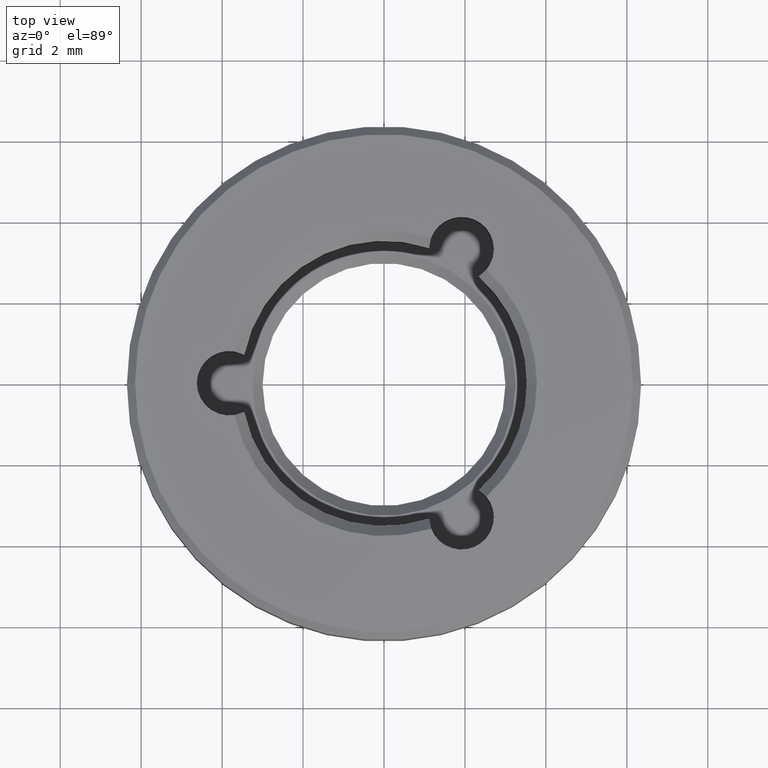
[diagram: clean part render]
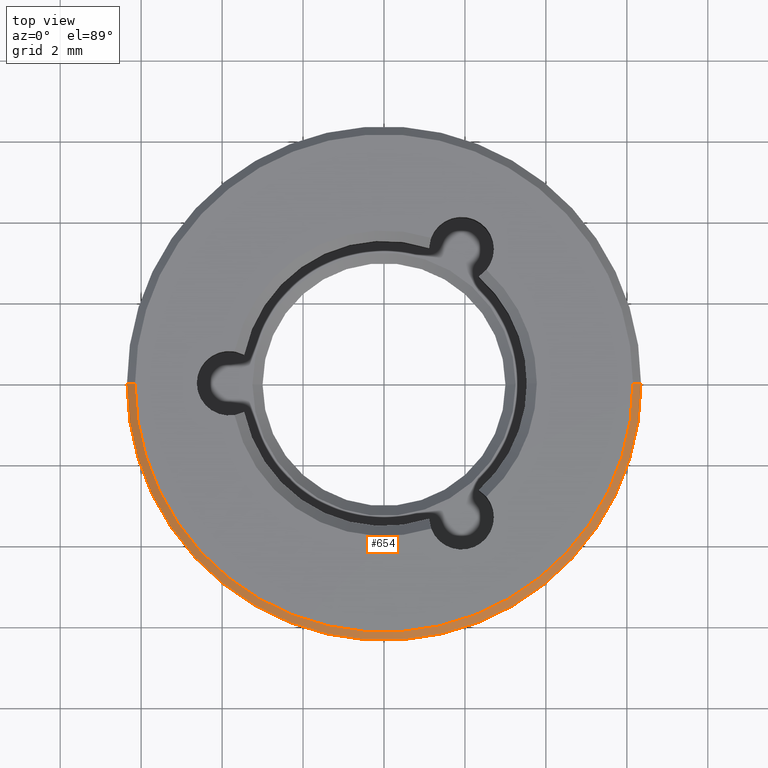
[diagram: same view with one face highlighted and labeled with its STEP entity id]
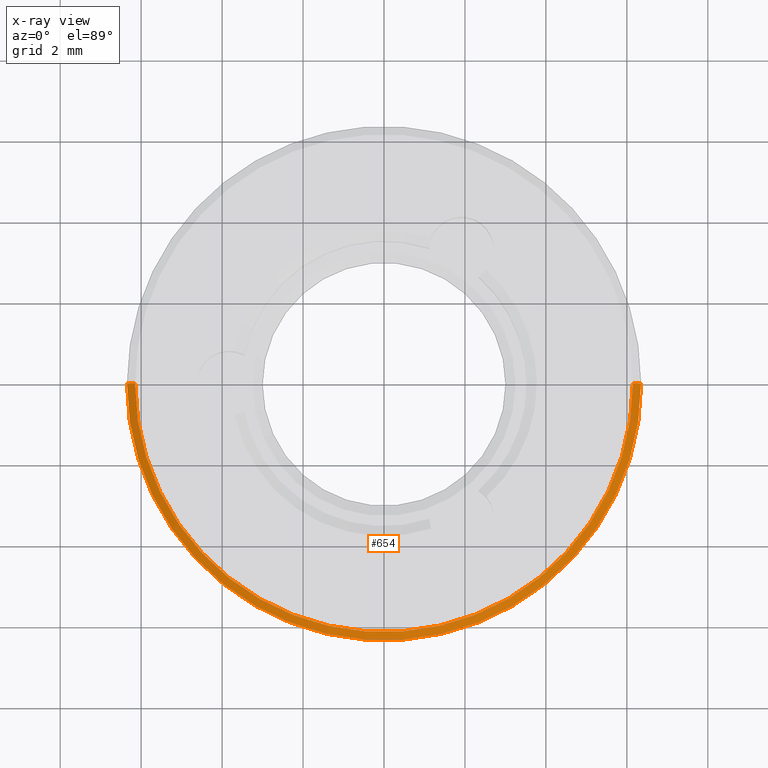
[diagram: x-ray of the same camera — body ghosted, the highlighted face saturated]
A machine part, top view. The second image highlights one B-rep face of the part: STEP entity #654.
The next image is the same camera in x-ray: the body ghosted, the highlighted face saturated — about 0% of this face is hidden behind the body in this view.
In plain terms, the highlighted conical surface has half-angle 45 deg.
Its self-contained STEP definition (entity closure, byte-faithful):
#42 = EDGE_LOOP ( 'NONE', ( #680, #871, #483, #331 ) ) ;
#55 = DIRECTION ( 'NONE',  ( 0.000000000000000000, 0.000000000000000000, -1.000000000000000000 ) ) ;
#59 = VERTEX_POINT ( 'NONE', #213 ) ;
#135 = CIRCLE ( 'NONE', #803, 6.349999999999999645 ) ;
#167 = DIRECTION ( 'NONE',  ( 0.000000000000000000, 0.000000000000000000, -1.000000000000000000 ) ) ;
#213 = CARTESIAN_POINT ( 'NONE',  ( 6.149999999999999467, 7.654042494670954648E-16, 2.200000000000000178 ) ) ;
#295 = EDGE_CURVE ( 'NONE', #751, #886, #135, .T. ) ;
#308 = VERTEX_POINT ( 'NONE', #889 ) ;
#325 = LINE ( 'NONE', #609, #793 ) ;
#328 = DIRECTION ( 'NONE',  ( -0.7071067811865490160, 0.000000000000000000, -0.7071067811865459074 ) ) ;
#331 = ORIENTED_EDGE ( 'NONE', *, *, #295, .F. ) ;
#336 = CIRCLE ( 'NONE', #572, 6.149999999999999467 ) ;
#352 = CARTESIAN_POINT ( 'NONE',  ( 6.149999999999999467, 7.531577814756219106E-16, 2.200000000000000178 ) ) ;
#367 = CARTESIAN_POINT ( 'NONE',  ( 0.000000000000000000, 0.000000000000000000, 2.200000000000000178 ) ) ;
#377 = DIRECTION ( 'NONE',  ( 1.000000000000000000, 0.000000000000000000, 0.000000000000000000 ) ) ;
#421 = LINE ( 'NONE', #352, #618 ) ;
#426 = EDGE_CURVE ( 'NONE', #308, #886, #325, .T. ) ;
#483 = ORIENTED_EDGE ( 'NONE', *, *, #426, .T. ) ;
#487 = EDGE_CURVE ( 'NONE', #308, #59, #336, .T. ) ;
#493 = CARTESIAN_POINT ( 'NONE',  ( 0.000000000000000000, 0.000000000000000000, 2.200000000000000178 ) ) ;
#524 = CARTESIAN_POINT ( 'NONE',  ( 6.349999999999999645, 7.776507174585692163E-16, 2.000000000000000444 ) ) ;
#557 = CONICAL_SURFACE ( 'NONE', #649, 6.149999999999999467, 0.7853981633974503884 ) ;
#572 = AXIS2_PLACEMENT_3D ( 'NONE', #493, #855, #574 ) ;
#574 = DIRECTION ( 'NONE',  ( 1.000000000000000000, 0.000000000000000000, 0.000000000000000000 ) ) ;
#577 = FACE_OUTER_BOUND ( 'NONE', #42, .T. ) ;
#592 = CARTESIAN_POINT ( 'NONE',  ( -6.349999999999999645, 0.000000000000000000, 2.000000000000000444 ) ) ;
#609 = CARTESIAN_POINT ( 'NONE',  ( -6.149999999999999467, 0.000000000000000000, 2.200000000000000178 ) ) ;
#618 = VECTOR ( 'NONE', #715, 1000.000000000000000 ) ;
#628 = EDGE_CURVE ( 'NONE', #59, #751, #421, .T. ) ;
#649 = AXIS2_PLACEMENT_3D ( 'NONE', #367, #55, #830 ) ;
#654 = ADVANCED_FACE ( 'NONE', ( #577 ), #557, .T. ) ;
#680 = ORIENTED_EDGE ( 'NONE', *, *, #628, .F. ) ;
#715 = DIRECTION ( 'NONE',  ( 0.7071067811865490160, 8.659560562354950115E-17, -0.7071067811865459074 ) ) ;
#736 = CARTESIAN_POINT ( 'NONE',  ( 0.000000000000000000, 0.000000000000000000, 2.000000000000000444 ) ) ;
#751 = VERTEX_POINT ( 'NONE', #524 ) ;
#793 = VECTOR ( 'NONE', #328, 1000.000000000000000 ) ;
#803 = AXIS2_PLACEMENT_3D ( 'NONE', #736, #167, #377 ) ;
#830 = DIRECTION ( 'NONE',  ( -1.000000000000000000, 0.000000000000000000, 0.000000000000000000 ) ) ;
#855 = DIRECTION ( 'NONE',  ( 0.000000000000000000, 0.000000000000000000, 1.000000000000000000 ) ) ;
#871 = ORIENTED_EDGE ( 'NONE', *, *, #487, .F. ) ;
#886 = VERTEX_POINT ( 'NONE', #592 ) ;
#889 = CARTESIAN_POINT ( 'NONE',  ( -6.149999999999999467, 0.000000000000000000, 2.200000000000000178 ) ) ;